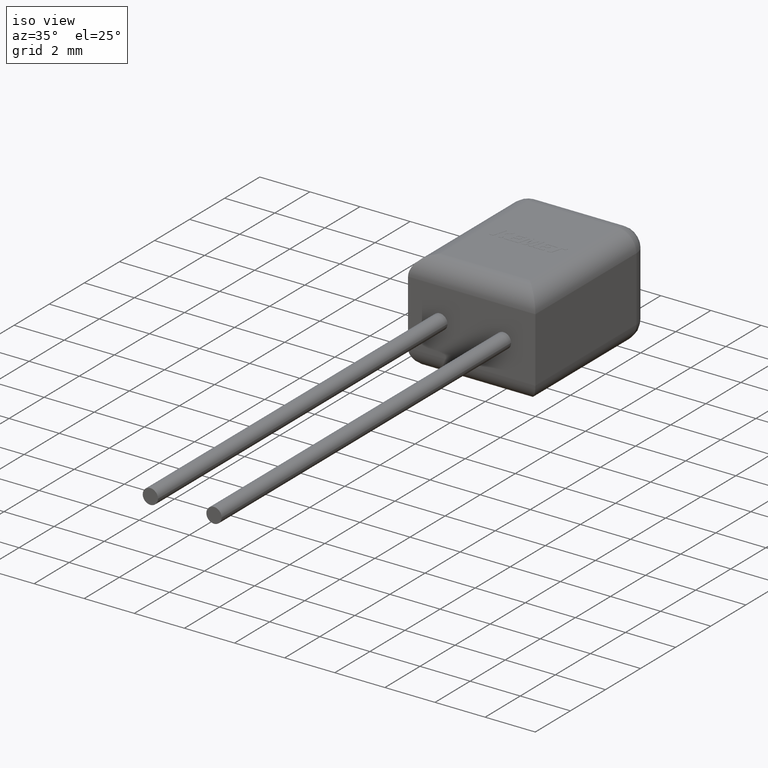
[diagram: clean part render]
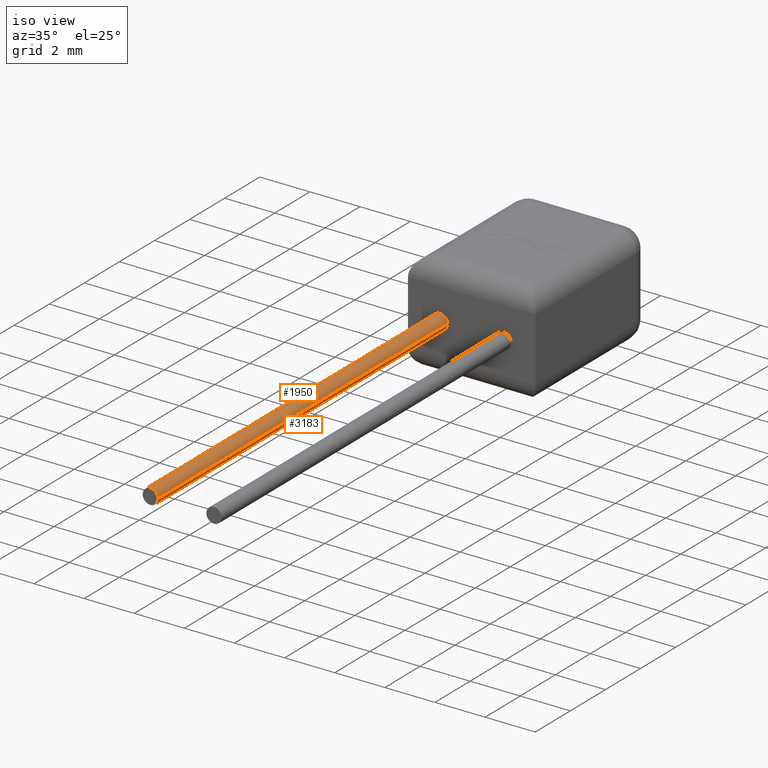
[diagram: same view with one multi-face feature highlighted, each face labeled with its STEP entity id]
A machine part, iso view. The highlighted faces form ONE feature: a constant-radius fillet chain: 2 tangent blend faces with common blend radius 0.305 mm. The faces share edges in the B-rep.
Their STEP definitions:
[1] entity #1950 (Cylinder):
#139 = ORIENTED_EDGE ( 'NONE', *, *, #2664, .F. ) ;
#218 = DIRECTION ( 'NONE',  ( 1.000000000000000000, 0.0000000000000000000, 0.0000000000000000000 ) ) ;
#327 = AXIS2_PLACEMENT_3D ( 'NONE', #482, #1654, #218 ) ;
#363 = VERTEX_POINT ( 'NONE', #416 ) ;
#416 = CARTESIAN_POINT ( 'NONE',  ( -4.115000000000000200, -3.735172737399428900E-017, 2.035000000000000100 ) ) ;
#482 = CARTESIAN_POINT ( 'NONE',  ( -3.809999999999997800, -16.50000000000000000, 2.035000000000000100 ) ) ;
#730 = FACE_OUTER_BOUND ( 'NONE', #3699, .T. ) ;
#809 = DIRECTION ( 'NONE',  ( -1.000000000000000000, 0.0000000000000000000, 0.0000000000000000000 ) ) ;
#824 = VECTOR ( 'NONE', #3488, 1000.000000000000000 ) ;
#863 = VERTEX_POINT ( 'NONE', #1564 ) ;
#879 = CIRCLE ( 'NONE', #327, 0.3050000000000001600 ) ;
#1092 = DIRECTION ( 'NONE',  ( 1.224646799147353200E-016, -1.000000000000000000, -0.0000000000000000000 ) ) ;
#1165 = DIRECTION ( 'NONE',  ( -1.224646799147353200E-016, 1.000000000000000000, -0.0000000000000000000 ) ) ;
#1181 = AXIS2_PLACEMENT_3D ( 'NONE', #2231, #2803, #809 ) ;
#1416 = CARTESIAN_POINT ( 'NONE',  ( -3.810000000000000100, 0.0000000000000000000, 2.035000000000000100 ) ) ;
#1417 = CARTESIAN_POINT ( 'NONE',  ( -3.504999999999999900, 3.735172737399428900E-017, 2.035000000000000100 ) ) ;
#1453 = AXIS2_PLACEMENT_3D ( 'NONE', #1416, #1092, #3104 ) ;
#1493 = EDGE_CURVE ( 'NONE', #3694, #363, #2122, .T. ) ;
#1509 = VERTEX_POINT ( 'NONE', #3132 ) ;
#1564 = CARTESIAN_POINT ( 'NONE',  ( -4.114999999999998400, -16.50000000000000000, 2.035000000000000100 ) ) ;
#1626 = ORIENTED_EDGE ( 'NONE', *, *, #3521, .F. ) ;
#1654 = DIRECTION ( 'NONE',  ( 1.224646799147353200E-016, -1.000000000000000000, 0.0000000000000000000 ) ) ;
#1950 = ADVANCED_FACE ( 'NONE', ( #730 ), #2343, .T. ) ;
#2049 = VECTOR ( 'NONE', #1165, 1000.000000000000000 ) ;
#2122 = CIRCLE ( 'NONE', #1453, 0.3050000000000006000 ) ;
#2179 = LINE ( 'NONE', #3161, #2049 ) ;
#2231 = CARTESIAN_POINT ( 'NONE',  ( -3.809999999999997800, -16.50000000000000000, 2.035000000000000100 ) ) ;
#2293 = LINE ( 'NONE', #3220, #824 ) ;
#2343 = CYLINDRICAL_SURFACE ( 'NONE', #1181, 0.3050000000000001600 ) ;
#2380 = EDGE_CURVE ( 'NONE', #1509, #3694, #2293, .T. ) ;
#2664 = EDGE_CURVE ( 'NONE', #863, #363, #2179, .T. ) ;
#2803 = DIRECTION ( 'NONE',  ( -1.224646799147353200E-016, 1.000000000000000000, -0.0000000000000000000 ) ) ;
#2845 = ORIENTED_EDGE ( 'NONE', *, *, #2380, .T. ) ;
#3104 = DIRECTION ( 'NONE',  ( -1.000000000000000000, -1.224646799147351200E-016, 0.0000000000000000000 ) ) ;
#3132 = CARTESIAN_POINT ( 'NONE',  ( -3.504999999999997700, -16.50000000000000000, 2.035000000000000100 ) ) ;
#3161 = CARTESIAN_POINT ( 'NONE',  ( -4.114999999999998400, -16.50000000000000000, 2.035000000000000100 ) ) ;
#3220 = CARTESIAN_POINT ( 'NONE',  ( -3.504999999999997700, -16.50000000000000000, 2.035000000000000100 ) ) ;
#3488 = DIRECTION ( 'NONE',  ( -1.224646799147353200E-016, 1.000000000000000000, -0.0000000000000000000 ) ) ;
#3521 = EDGE_CURVE ( 'NONE', #1509, #863, #879, .T. ) ;
#3664 = ORIENTED_EDGE ( 'NONE', *, *, #1493, .T. ) ;
#3694 = VERTEX_POINT ( 'NONE', #1417 ) ;
#3699 = EDGE_LOOP ( 'NONE', ( #1626, #2845, #3664, #139 ) ) ;
[2] entity #3183 (Cylinder):
#86 = AXIS2_PLACEMENT_3D ( 'NONE', #3122, #1421, #2635 ) ;
#189 = ORIENTED_EDGE ( 'NONE', *, *, #2968, .T. ) ;
#194 = EDGE_CURVE ( 'NONE', #863, #1509, #2623, .T. ) ;
#320 = CARTESIAN_POINT ( 'NONE',  ( -3.809999999999997800, -16.50000000000000000, 2.035000000000000100 ) ) ;
#363 = VERTEX_POINT ( 'NONE', #416 ) ;
#364 = ORIENTED_EDGE ( 'NONE', *, *, #194, .F. ) ;
#416 = CARTESIAN_POINT ( 'NONE',  ( -4.115000000000000200, -3.735172737399428900E-017, 2.035000000000000100 ) ) ;
#591 = EDGE_LOOP ( 'NONE', ( #1563, #364, #3345, #189 ) ) ;
#610 = AXIS2_PLACEMENT_3D ( 'NONE', #320, #2663, #2358 ) ;
#702 = CARTESIAN_POINT ( 'NONE',  ( -3.810000000000000100, 0.0000000000000000000, 2.035000000000000100 ) ) ;
#824 = VECTOR ( 'NONE', #3488, 1000.000000000000000 ) ;
#863 = VERTEX_POINT ( 'NONE', #1564 ) ;
#1165 = DIRECTION ( 'NONE',  ( -1.224646799147353200E-016, 1.000000000000000000, -0.0000000000000000000 ) ) ;
#1343 = DIRECTION ( 'NONE',  ( 1.224646799147353200E-016, -1.000000000000000000, -0.0000000000000000000 ) ) ;
#1417 = CARTESIAN_POINT ( 'NONE',  ( -3.504999999999999900, 3.735172737399428900E-017, 2.035000000000000100 ) ) ;
#1421 = DIRECTION ( 'NONE',  ( -1.224646799147353200E-016, 1.000000000000000000, -0.0000000000000000000 ) ) ;
#1509 = VERTEX_POINT ( 'NONE', #3132 ) ;
#1563 = ORIENTED_EDGE ( 'NONE', *, *, #2380, .F. ) ;
#1564 = CARTESIAN_POINT ( 'NONE',  ( -4.114999999999998400, -16.50000000000000000, 2.035000000000000100 ) ) ;
#2049 = VECTOR ( 'NONE', #1165, 1000.000000000000000 ) ;
#2179 = LINE ( 'NONE', #3161, #2049 ) ;
#2293 = LINE ( 'NONE', #3220, #824 ) ;
#2358 = DIRECTION ( 'NONE',  ( 1.000000000000000000, 0.0000000000000000000, 0.0000000000000000000 ) ) ;
#2380 = EDGE_CURVE ( 'NONE', #1509, #3694, #2293, .T. ) ;
#2623 = CIRCLE ( 'NONE', #610, 0.3050000000000001600 ) ;
#2635 = DIRECTION ( 'NONE',  ( -1.000000000000000000, 0.0000000000000000000, 0.0000000000000000000 ) ) ;
#2663 = DIRECTION ( 'NONE',  ( 1.224646799147353200E-016, -1.000000000000000000, 0.0000000000000000000 ) ) ;
#2664 = EDGE_CURVE ( 'NONE', #863, #363, #2179, .T. ) ;
#2836 = CIRCLE ( 'NONE', #2972, 0.3050000000000006000 ) ;
#2968 = EDGE_CURVE ( 'NONE', #363, #3694, #2836, .T. ) ;
#2972 = AXIS2_PLACEMENT_3D ( 'NONE', #702, #1343, #3085 ) ;
#3085 = DIRECTION ( 'NONE',  ( -1.000000000000000000, -1.224646799147351200E-016, 0.0000000000000000000 ) ) ;
#3122 = CARTESIAN_POINT ( 'NONE',  ( -3.809999999999997800, -16.50000000000000000, 2.035000000000000100 ) ) ;
#3132 = CARTESIAN_POINT ( 'NONE',  ( -3.504999999999997700, -16.50000000000000000, 2.035000000000000100 ) ) ;
#3161 = CARTESIAN_POINT ( 'NONE',  ( -4.114999999999998400, -16.50000000000000000, 2.035000000000000100 ) ) ;
#3183 = ADVANCED_FACE ( 'NONE', ( #3672 ), #3571, .T. ) ;
#3220 = CARTESIAN_POINT ( 'NONE',  ( -3.504999999999997700, -16.50000000000000000, 2.035000000000000100 ) ) ;
#3345 = ORIENTED_EDGE ( 'NONE', *, *, #2664, .T. ) ;
#3488 = DIRECTION ( 'NONE',  ( -1.224646799147353200E-016, 1.000000000000000000, -0.0000000000000000000 ) ) ;
#3571 = CYLINDRICAL_SURFACE ( 'NONE', #86, 0.3050000000000001600 ) ;
#3672 = FACE_OUTER_BOUND ( 'NONE', #591, .T. ) ;
#3694 = VERTEX_POINT ( 'NONE', #1417 ) ;